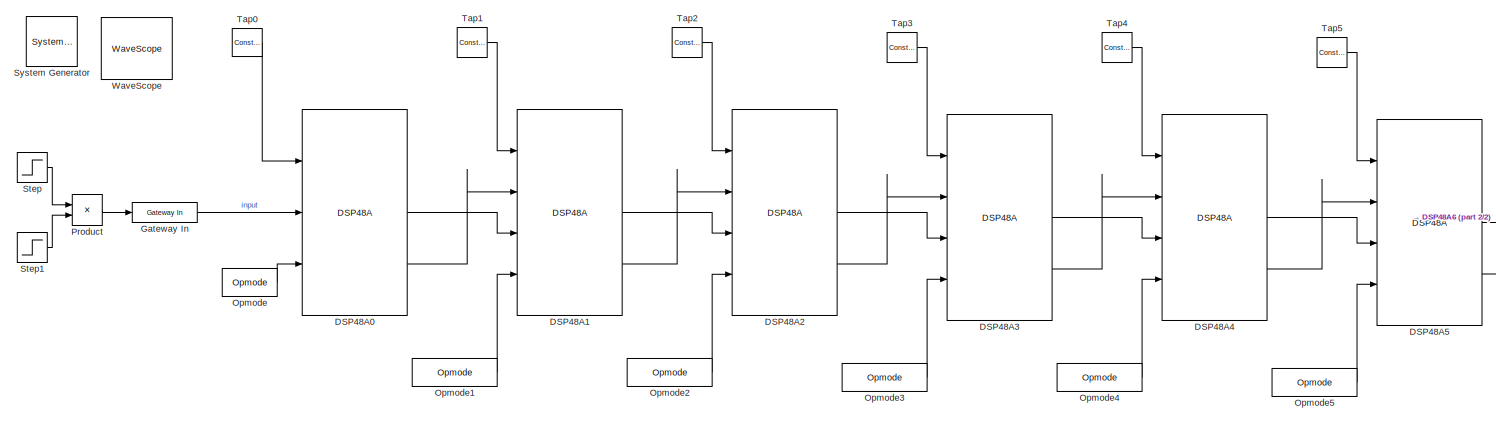
[diagram: root canvas - part 1/2, center side, full height]
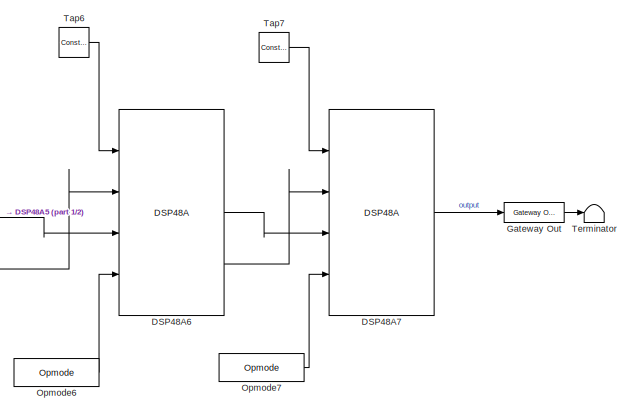
[diagram: root canvas - part 2/2, right side, full height]
MODEL asymmetric_8weight
KIND model
BLOCK [Reference]  System Generator  REF=xbsIndex_r4/ System Generator
  AttributesFormatString = System\\nGenerator
  FunctionWithSeparateData = off
  Ports = []
  RTWMemSecDataConstants = Inherit from model
  RTWMemSecDataInternal = Inherit from model
  RTWMemSecDataParameters = Inherit from model
  RTWMemSecFuncExecute = Inherit from model
  RTWMemSecFuncInitTerm = Inherit from model
  ShowPortLabels = FromPortIcon
  SourceBlock = xbsIndex_r4/ System Generator
  SourceType = Xilinx System Generator Block
  SystemSampleTime = -1
  Tag = genX
  UserData = DataTag0
  UserDataPersistent = on
  block_type = sysgen
  block_version = 9.2.01
  clock_wrapper = Clock Enables
  core_generation = According to Block Masks
  dbl_ovrd = According to Block Masks
  dcm_input_clock_period = 100
  deprecated_control = off
  directory = ./asymmetric_8_weight
  eval_field = 0
  has_advanced_control = 0
  incr_netlist = off
  infoedit = System Generator
  package = cs484
  part = xc3sd1800a
  run_coregen = off
  sg_icon_stat = 51,50,-1,-1,red,beige,0,07734
  sg_mask_display = fprintf('','COMMENT: begin icon graphics');\npatch([0 51 51 0 ],[0 0 50 50 ],[0.93 0.92 0.86]);\npatch([12 4 16 4 12 25 29 33 47 36 25 17 29 17 25 36 47 33 29 25 12 ],[5 13 25 37 45 45 41 45 45 34 45 37 25 13 5 16 5 5 9 5 5 ],[0.6 0.2 0.25]);\nplot([0 0 51 51 0 ],[0 50 50 0 0 ]);\nfprintf('','COMMENT: end icon graphics');\nfprintf('','COMMENT: begin icon text');\nfprintf('','COMMENT: end icon text...<+5ch>
  sggui_pos = -1,-1,-1,-1
  simulink_period = 1
  speed = -5
  synthesis_tool = XST
  sysclk_period = 3.2
  testbench = off
  trim_vbits = Everywhere in SubSystem
  xilinxfamily = spartan3adsp
BLOCK [Reference] DSP48A0  REF=xbsIndex_r4/DSP48A
  Ports = [3, 3]
  SourceBlock = xbsIndex_r4/DSP48A
  SourceType = Xilinx DSP48A Block
  block_type = dsp48a
  block_version = 9.2.01
  carryin_type = Direct from carry in port
  dbl_ovrd = off
  device = 3
  en_a = off
  en_all = off
  en_b = off
  en_c = off
  en_carry_in = off
  en_d = off
  en_mult = off
  en_opmode = off
  en_p = off
  has_advanced_control = 0
  pipeline_c = on
  pipeline_carryin = on
  pipeline_d = off
  pipeline_mult = on
  pipeline_opmode = on
  pipeline_p = on
  rst_a = off
  rst_all = off
  rst_b = off
  rst_c = off
  rst_carry_in = off
  rst_d = off
  rst_mult = off
  rst_opmode = off
  rst_p = off
  sg_icon_stat = 105,206,1,1,white,blue,0,2183f4c5,right
  sg_mask_display = fprintf('','COMMENT: begin icon graphics');\npatch([0 75 75 0 ],[0 0 136 136 ],[0.77 0.82 0.91]);\npatch([17 5 23 5 17 37 42 47 68 51 35 23 40 23 35 51 68 47 42 37 17 ],[39 51 69 87 99 99 94 99 99 82 98 86 69 52 40 56 39 39 44 39 39 ],[0.98 0.96 0.92]);\nplot([0 75 75 0 0 ],[0 0 136 136 0 ]);\nfprintf('','COMMENT: end icon graphics');\nfprintf('','COMMENT: begin icon text');\ncolor('black');port_l...<+288ch>
  sggui_pos = 261,101,442,483
  use_a0reg = on
  use_a1reg = off
  use_b0reg = on
  use_b1reg = on
  use_bcout = on
  use_carryin = off
  use_carryout = off
  use_creg = off
  use_d = off
  use_op = on
  use_pcin = off
  use_pcout = on
  use_synth_model = off
  xl_area = [0,0,0,0,0,0,0]
  xl_use_area = off
BLOCK [Reference] DSP48A1  REF=xbsIndex_r4/DSP48A
  Ports = [4, 3]
  SourceBlock = xbsIndex_r4/DSP48A
  SourceType = Xilinx DSP48A Block
  block_type = dsp48a
  block_version = 9.2.01
  carryin_type = Direct from carry in port
  dbl_ovrd = off
  device = 3
  en_a = off
  en_all = off
  en_b = off
  en_c = off
  en_carry_in = off
  en_d = off
  en_mult = off
  en_opmode = off
  en_p = off
  has_advanced_control = 0
  pipeline_c = on
  pipeline_carryin = on
  pipeline_d = off
  pipeline_mult = on
  pipeline_opmode = on
  pipeline_p = on
  rst_a = off
  rst_all = off
  rst_b = off
  rst_c = off
  rst_carry_in = off
  rst_d = off
  rst_mult = off
  rst_opmode = off
  rst_p = off
  sg_icon_stat = 105,206,1,1,white,blue,0,af99bc69,right
  sg_mask_display = fprintf('','COMMENT: begin icon graphics');\npatch([0 75 75 0 ],[0 0 136 136 ],[0.77 0.82 0.91]);\npatch([17 5 23 5 17 37 42 47 68 51 35 23 40 23 35 51 68 47 42 37 17 ],[39 51 69 87 99 99 94 99 99 82 98 86 69 52 40 56 39 39 44 39 39 ],[0.98 0.96 0.92]);\nplot([0 75 75 0 0 ],[0 0 136 136 0 ]);\nfprintf('','COMMENT: end icon graphics');\nfprintf('','COMMENT: begin icon text');\ncolor('black');port_l...<+334ch>  <repeated x6 — deduplicated; at blocks: DSP48A1, DSP48A2, DSP48A3, DSP48A4, DSP48A5, DSP48A6>
  sggui_pos = 20,20,442,483
  use_a0reg = on
  use_a1reg = off
  use_b0reg = on
  use_b1reg = on
  use_bcout = on
  use_carryin = off
  use_carryout = off
  use_creg = off
  use_d = off
  use_op = on
  use_pcin = on
  use_pcout = on
  use_synth_model = off
  xl_area = [0,0,0,0,0,0,0]
  xl_use_area = off
BLOCK [Reference] DSP48A2  REF=xbsIndex_r4/DSP48A
  Ports = [4, 3]
  SourceBlock = xbsIndex_r4/DSP48A
  SourceType = Xilinx DSP48A Block
  block_type = dsp48a
  block_version = 9.2.01
  carryin_type = Direct from carry in port
  dbl_ovrd = off
  device = 3
  en_a = off
  en_all = off
  en_b = off
  en_c = off
  en_carry_in = off
  en_d = off
  en_mult = off
  en_opmode = off
  en_p = off
  has_advanced_control = 0
  pipeline_c = on
  pipeline_carryin = on
  pipeline_d = off
  pipeline_mult = on
  pipeline_opmode = on
  pipeline_p = on
  rst_a = off
  rst_all = off
  rst_b = off
  rst_c = off
  rst_carry_in = off
  rst_d = off
  rst_mult = off
  rst_opmode = off
  rst_p = off
  sg_icon_stat = 105,206,1,1,white,blue,0,af99bc69,right
  sggui_pos = 20,20,442,483
  use_a0reg = on
  use_a1reg = off
  use_b0reg = on
  use_b1reg = on
  use_bcout = on
  use_carryin = off
  use_carryout = off
  use_creg = off
  use_d = off
  use_op = on
  use_pcin = on
  use_pcout = on
  use_synth_model = off
  xl_area = [0,0,0,0,0,0,0]
  xl_use_area = off
BLOCK [Reference] DSP48A3  REF=xbsIndex_r4/DSP48A
  Ports = [4, 3]
  SourceBlock = xbsIndex_r4/DSP48A
  SourceType = Xilinx DSP48A Block
  block_type = dsp48a
  block_version = 9.2.01
  carryin_type = Direct from carry in port
  dbl_ovrd = off
  device = 3
  en_a = off
  en_all = off
  en_b = off
  en_c = off
  en_carry_in = off
  en_d = off
  en_mult = off
  en_opmode = off
  en_p = off
  has_advanced_control = 0
  pipeline_c = on
  pipeline_carryin = on
  pipeline_d = off
  pipeline_mult = on
  pipeline_opmode = on
  pipeline_p = on
  rst_a = off
  rst_all = off
  rst_b = off
  rst_c = off
  rst_carry_in = off
  rst_d = off
  rst_mult = off
  rst_opmode = off
  rst_p = off
  sg_icon_stat = 105,206,1,1,white,blue,0,af99bc69,right
  sggui_pos = 20,20,442,483
  use_a0reg = on
  use_a1reg = off
  use_b0reg = on
  use_b1reg = on
  use_bcout = on
  use_carryin = off
  use_carryout = off
  use_creg = off
  use_d = off
  use_op = on
  use_pcin = on
  use_pcout = on
  use_synth_model = off
  xl_area = [0,0,0,0,0,0,0]
  xl_use_area = off
BLOCK [Reference] DSP48A4  REF=xbsIndex_r4/DSP48A
  Ports = [4, 3]
  SourceBlock = xbsIndex_r4/DSP48A
  SourceType = Xilinx DSP48A Block
  block_type = dsp48a
  block_version = 9.2.01
  carryin_type = Direct from carry in port
  dbl_ovrd = off
  device = 3
  en_a = off
  en_all = off
  en_b = off
  en_c = off
  en_carry_in = off
  en_d = off
  en_mult = off
  en_opmode = off
  en_p = off
  has_advanced_control = 0
  pipeline_c = on
  pipeline_carryin = on
  pipeline_d = off
  pipeline_mult = on
  pipeline_opmode = on
  pipeline_p = on
  rst_a = off
  rst_all = off
  rst_b = off
  rst_c = off
  rst_carry_in = off
  rst_d = off
  rst_mult = off
  rst_opmode = off
  rst_p = off
  sg_icon_stat = 105,206,1,1,white,blue,0,af99bc69,right
  sggui_pos = 20,20,442,483
  use_a0reg = on
  use_a1reg = off
  use_b0reg = on
  use_b1reg = on
  use_bcout = on
  use_carryin = off
  use_carryout = off
  use_creg = off
  use_d = off
  use_op = on
  use_pcin = on
  use_pcout = on
  use_synth_model = off
  xl_area = [0,0,0,0,0,0,0]
  xl_use_area = off
BLOCK [Reference] DSP48A5  REF=xbsIndex_r4/DSP48A
  Ports = [4, 3]
  SourceBlock = xbsIndex_r4/DSP48A
  SourceType = Xilinx DSP48A Block
  block_type = dsp48a
  block_version = 9.2.01
  carryin_type = Direct from carry in port
  dbl_ovrd = off
  device = 3
  en_a = off
  en_all = off
  en_b = off
  en_c = off
  en_carry_in = off
  en_d = off
  en_mult = off
  en_opmode = off
  en_p = off
  has_advanced_control = 0
  pipeline_c = on
  pipeline_carryin = on
  pipeline_d = off
  pipeline_mult = on
  pipeline_opmode = on
  pipeline_p = on
  rst_a = off
  rst_all = off
  rst_b = off
  rst_c = off
  rst_carry_in = off
  rst_d = off
  rst_mult = off
  rst_opmode = off
  rst_p = off
  sg_icon_stat = 105,206,1,1,white,blue,0,af99bc69,right
  sggui_pos = 20,20,442,483
  use_a0reg = on
  use_a1reg = off
  use_b0reg = on
  use_b1reg = on
  use_bcout = on
  use_carryin = off
  use_carryout = off
  use_creg = off
  use_d = off
  use_op = on
  use_pcin = on
  use_pcout = on
  use_synth_model = off
  xl_area = [0,0,0,0,0,0,0]
  xl_use_area = off
BLOCK [Reference] DSP48A6  REF=xbsIndex_r4/DSP48A
  Ports = [4, 3]
  SourceBlock = xbsIndex_r4/DSP48A
  SourceType = Xilinx DSP48A Block
  block_type = dsp48a
  block_version = 9.2.01
  carryin_type = Direct from carry in port
  dbl_ovrd = off
  device = 3
  en_a = off
  en_all = off
  en_b = off
  en_c = off
  en_carry_in = off
  en_d = off
  en_mult = off
  en_opmode = off
  en_p = off
  has_advanced_control = 0
  pipeline_c = on
  pipeline_carryin = on
  pipeline_d = off
  pipeline_mult = on
  pipeline_opmode = on
  pipeline_p = on
  rst_a = off
  rst_all = off
  rst_b = off
  rst_c = off
  rst_carry_in = off
  rst_d = off
  rst_mult = off
  rst_opmode = off
  rst_p = off
  sg_icon_stat = 105,206,1,1,white,blue,0,af99bc69,right
  sggui_pos = 20,20,442,483
  use_a0reg = on
  use_a1reg = off
  use_b0reg = on
  use_b1reg = on
  use_bcout = on
  use_carryin = off
  use_carryout = off
  use_creg = off
  use_d = off
  use_op = on
  use_pcin = on
  use_pcout = on
  use_synth_model = off
  xl_area = [0,0,0,0,0,0,0]
  xl_use_area = off
BLOCK [Reference] DSP48A7  REF=xbsIndex_r4/DSP48A
  Ports = [4, 1]
  SourceBlock = xbsIndex_r4/DSP48A
  SourceType = Xilinx DSP48A Block
  block_type = dsp48a
  block_version = 9.2.01
  carryin_type = Direct from carry in port
  dbl_ovrd = off
  device = 3
  en_a = off
  en_all = off
  en_b = off
  en_c = off
  en_carry_in = off
  en_d = off
  en_mult = off
  en_opmode = off
  en_p = off
  has_advanced_control = 0
  pipeline_c = on
  pipeline_carryin = on
  pipeline_d = off
  pipeline_mult = on
  pipeline_opmode = on
  pipeline_p = on
  rst_a = off
  rst_all = off
  rst_b = off
  rst_c = off
  rst_carry_in = off
  rst_d = off
  rst_mult = off
  rst_opmode = off
  rst_p = off
  sg_icon_stat = 105,206,1,1,white,blue,0,d1acf6e8,right
  sg_mask_display = fprintf('','COMMENT: begin icon graphics');\npatch([0 75 75 0 ],[0 0 136 136 ],[0.77 0.82 0.91]);\npatch([17 5 23 5 17 37 42 47 68 51 35 23 40 23 35 51 68 47 42 37 17 ],[39 51 69 87 99 99 94 99 99 82 98 86 69 52 40 56 39 39 44 39 39 ],[0.98 0.96 0.92]);\nplot([0 75 75 0 0 ],[0 0 136 136 0 ]);\nfprintf('','COMMENT: end icon graphics');\nfprintf('','COMMENT: begin icon text');\ncolor('black');port_l...<+238ch>
  sggui_pos = 20,20,442,483
  use_a0reg = on
  use_a1reg = off
  use_b0reg = on
  use_b1reg = on
  use_bcout = off
  use_carryin = off
  use_carryout = off
  use_creg = off
  use_d = off
  use_op = on
  use_pcin = on
  use_pcout = off
  use_synth_model = off
  xl_area = [0,0,0,0,0,0,0]
  xl_use_area = off
BLOCK [Reference] Gateway In  REF=xbsIndex_r4/Gateway In
  LOCs = {}
  Ports = [1, 1]
  SourceBlock = xbsIndex_r4/Gateway In
  SourceType = Xilinx Gateway In Block
  arith_type = Signed  (2's comp)
  bin_pt = 0
  block_type = gatewayin
  block_version = 9.2.01
  dbl_ovrd = off
  has_advanced_control = 0
  infoedit = Gateway in block.  Converts inputs of type Simulink integer, double and fixed point to  Xilinx fixed point type.<P><P>Hardware notes:  In hardware these blocks become top level input ports.
  locs_specified = off
  n_bits = 18
  overflow = Saturate
  period = 1
  quantization = Round  (unbiased: +/- Inf)
  sg_icon_stat = 65,20,1,1,white,yellow,0,bc55d28f,right
  sg_mask_display = fprintf('','COMMENT: begin icon graphics');\npatch([0 65 65 0 ],[0 0 20 20 ],[0.95 0.93 0.65]);\npatch([27 24 29 24 27 32 33 34 40 36 32 29 34 29 32 36 40 34 33 32 27 ],[2 5 10 15 18 18 17 18 18 14 18 15 10 5 2 6 2 2 3 2 2 ],[0.98 0.96 0.92]);\nplot([0 65 65 0 0 ],[0 0 20 20 0 ]);\nfprintf('','COMMENT: end icon graphics');\nfprintf('','COMMENT: begin icon text');\ncolor('black');port_label('input'...<+131ch>
  sggui_pos = 20,20,348,406
  timing_constraint = None
  xl_area = [0,0,0,0,0,0,0]
  xl_use_area = off
BLOCK [Reference] Gateway Out  REF=xbsIndex_r4/Gateway Out
  LOCs = {}
  Ports = [1, 1]
  SourceBlock = xbsIndex_r4/Gateway Out
  SourceType = Xilinx Gateway Out Block
  block_type = gatewayout
  block_version = 9.2.01
  has_advanced_control = 0
  hdl_port = on
  infoedit = Gateway out block.  Converts Xilinx fixed point inputs into ouputs of type Simulink integer, double, or fixed point.<P><P>Hardware notes:  In hardware these blocks become top level output ports or are discarded, depending on how they are configured.
  locs_specified = off
  sg_icon_stat = 60,20,1,1,white,yellow,0,38220381,right
  sg_mask_display = fprintf('','COMMENT: begin icon graphics');\npatch([0 60 60 0 ],[0 0 20 20 ],[0.95 0.93 0.65]);\npatch([24 21 26 21 24 29 30 31 37 33 29 26 31 26 29 33 37 31 30 29 24 ],[2 5 10 15 18 18 17 18 18 14 18 15 10 5 2 6 2 2 3 2 2 ],[0.98 0.96 0.92]);\nplot([0 60 60 0 0 ],[0 0 20 20 0 ]);\nfprintf('','COMMENT: end icon graphics');\nfprintf('','COMMENT: begin icon text');\ncolor('black');port_label('input'...<+132ch>
  sggui_pos = -1,-1,-1,-1
  timing_constraint = None
  xl_area = [0,0,0,0,0,0,0]
  xl_use_area = off
BLOCK [Reference] Opmode  REF=xbsIndex_r4/Opmode
  Ports = [0, 1]
  SourceBlock = xbsIndex_r4/Opmode
  SourceType = Xilinx Instruction Block Block
  block_type = opmode
  block_version = 9.2.01
  carry = 0
  dbl_ovrd = off
  device = DSP48A
  equ = P=(A*B)
  has_advanced_control = 0
  logicinstr = X + Z
  operand = +
  operation = A * B
  sg_icon_stat = 55,28,1,1,white,blue,0,0eb0987d,right
  sg_list_contents = {'table'=>{'carry'=>'popup(0|1|CIN)','operation'=>'popup(C + A*B|PCIN + A*B|P + A*B|A * B|C + D:A:B|C - D:A:B|C|Custom)','userSelections'=>{'carry'=>'0','operation'=>'A * B','z_mux'=>'C'},'z_mux'=>'popup(0|PCIN|P|C)'}}
  sg_mask_display = fprintf('','COMMENT: begin icon graphics');\npatch([0 55 55 0 ],[0 0 26 26 ],[0.77 0.82 0.91]);\npatch([20 16 22 16 20 27 29 31 38 32 26 22 28 22 26 32 38 31 29 27 20 ],[3 7 13 19 23 23 21 23 23 17 23 19 13 7 3 9 3 3 5 3 3 ],[0.98 0.96 0.92]);\nplot([0 55 55 0 0 ],[0 0 26 26 0 ]);\nfprintf('','COMMENT: end icon graphics');\nfprintf('','COMMENT: begin icon text');\ncolor('black');port_label('output...<+56ch>
  sggui_pos = 617,177,336,450
  x_mux = A*(D+B)
  xy_mux = P
  z_mux = C
BLOCK [Reference] Opmode1  REF=xbsIndex_r4/Opmode
  Ports = [0, 1]
  SourceBlock = xbsIndex_r4/Opmode
  SourceType = Xilinx Instruction Block Block
  block_type = opmode
  block_version = 9.2.01
  carry = 0
  dbl_ovrd = off
  device = DSP48A
  equ = P=PCIN+(A*B)
  has_advanced_control = 0
  logicinstr = X + Z
  operand = +
  operation = PCIN + A*B
  sg_icon_stat = 85,28,1,1,white,blue,0,781f3f74,right
  sg_list_contents = {'table'=>{'carry'=>'popup(0|1|CIN)','operation'=>'popup(C + A*B|PCIN + A*B|P + A*B|A * B|C + D:A:B|C - D:A:B|C|Custom)','userSelections'=>{'carry'=>'0','operation'=>'PCIN + A*B','z_mux'=>'P'},'z_mux'=>'popup(0|PCIN|P|C)'}}  <repeated x7 — deduplicated; at blocks: Opmode1, Opmode2, Opmode3, Opmode4, Opmode5, Opmode6, Opmode7>
  sg_mask_display = fprintf('','COMMENT: begin icon graphics');\npatch([0 55 55 0 ],[0 0 26 26 ],[0.77 0.82 0.91]);\npatch([20 16 22 16 20 27 29 31 38 32 26 22 28 22 26 32 38 31 29 27 20 ],[3 7 13 19 23 23 21 23 23 17 23 19 13 7 3 9 3 3 5 3 3 ],[0.98 0.96 0.92]);\nplot([0 55 55 0 0 ],[0 0 26 26 0 ]);\nfprintf('','COMMENT: end icon graphics');\nfprintf('','COMMENT: begin icon text');\ncolor('black');port_label('output...<+61ch>  <repeated x7 — deduplicated; at blocks: Opmode1, Opmode2, Opmode3, Opmode4, Opmode5, Opmode6, Opmode7>
  sggui_pos = 20,20,336,450
  x_mux = A*(D+B)
  xy_mux = P
  z_mux = P
BLOCK [Reference] Opmode2  REF=xbsIndex_r4/Opmode
  Ports = [0, 1]
  SourceBlock = xbsIndex_r4/Opmode
  SourceType = Xilinx Instruction Block Block
  block_type = opmode
  block_version = 9.2.01
  carry = 0
  dbl_ovrd = off
  device = DSP48A
  equ = P=PCIN+(A*B)
  has_advanced_control = 0
  logicinstr = X + Z
  operand = +
  operation = PCIN + A*B
  sg_icon_stat = 85,28,1,1,white,blue,0,781f3f74,right
  sggui_pos = 20,20,336,450
  x_mux = A*(D+B)
  xy_mux = P
  z_mux = P
BLOCK [Reference] Opmode3  REF=xbsIndex_r4/Opmode
  Ports = [0, 1]
  SourceBlock = xbsIndex_r4/Opmode
  SourceType = Xilinx Instruction Block Block
  block_type = opmode
  block_version = 9.2.01
  carry = 0
  dbl_ovrd = off
  device = DSP48A
  equ = P=PCIN+(A*B)
  has_advanced_control = 0
  logicinstr = X + Z
  operand = +
  operation = PCIN + A*B
  sg_icon_stat = 85,28,1,1,white,blue,0,781f3f74,right
  sggui_pos = 20,20,336,450
  x_mux = A*(D+B)
  xy_mux = P
  z_mux = P
BLOCK [Reference] Opmode4  REF=xbsIndex_r4/Opmode
  Ports = [0, 1]
  SourceBlock = xbsIndex_r4/Opmode
  SourceType = Xilinx Instruction Block Block
  block_type = opmode
  block_version = 9.2.01
  carry = 0
  dbl_ovrd = off
  device = DSP48A
  equ = P=PCIN+(A*B)
  has_advanced_control = 0
  logicinstr = X + Z
  operand = +
  operation = PCIN + A*B
  sg_icon_stat = 85,28,1,1,white,blue,0,781f3f74,right
  sggui_pos = 20,20,336,450
  x_mux = A*(D+B)
  xy_mux = P
  z_mux = P
BLOCK [Reference] Opmode5  REF=xbsIndex_r4/Opmode
  Ports = [0, 1]
  SourceBlock = xbsIndex_r4/Opmode
  SourceType = Xilinx Instruction Block Block
  block_type = opmode
  block_version = 9.2.01
  carry = 0
  dbl_ovrd = off
  device = DSP48A
  equ = P=PCIN+(A*B)
  has_advanced_control = 0
  logicinstr = X + Z
  operand = +
  operation = PCIN + A*B
  sg_icon_stat = 85,28,1,1,white,blue,0,781f3f74,right
  sggui_pos = 20,20,336,450
  x_mux = A*(D+B)
  xy_mux = P
  z_mux = P
BLOCK [Reference] Opmode6  REF=xbsIndex_r4/Opmode
  Ports = [0, 1]
  SourceBlock = xbsIndex_r4/Opmode
  SourceType = Xilinx Instruction Block Block
  block_type = opmode
  block_version = 9.2.01
  carry = 0
  dbl_ovrd = off
  device = DSP48A
  equ = P=PCIN+(A*B)
  has_advanced_control = 0
  logicinstr = X + Z
  operand = +
  operation = PCIN + A*B
  sg_icon_stat = 85,28,1,1,white,blue,0,781f3f74,right
  sggui_pos = 20,20,336,450
  x_mux = A*(D+B)
  xy_mux = P
  z_mux = P
BLOCK [Reference] Opmode7  REF=xbsIndex_r4/Opmode
  Ports = [0, 1]
  SourceBlock = xbsIndex_r4/Opmode
  SourceType = Xilinx Instruction Block Block
  block_type = opmode
  block_version = 9.2.01
  carry = 0
  dbl_ovrd = off
  device = DSP48A
  equ = P=PCIN+(A*B)
  has_advanced_control = 0
  logicinstr = X + Z
  operand = +
  operation = PCIN + A*B
  sg_icon_stat = 85,28,1,1,white,blue,0,781f3f74,right
  sggui_pos = 20,20,336,450
  x_mux = A*(D+B)
  xy_mux = P
  z_mux = P
BLOCK [Product] Product
  CollapseMode = All dimensions
  InputSameDT = off
  OutDataTypeMode = Inherit via internal rule
  Ports = [2, 1]
  SaturateOnIntegerOverflow = off
BLOCK [Step] Step
  SampleTime = 1
  Time = 3
BLOCK [Step] Step1
  After = 0
  Before = 1
  SampleTime = 1
  Time = 4
BLOCK [Reference] Tap0  REF=xbsIndex_r4/Constant
  Ports = [0, 1]
  SourceBlock = xbsIndex_r4/Constant
  SourceType = Xilinx Constant Block Block
  arith_type = Signed (2's comp)
  bin_pt = 0
  block_type = constant
  block_version = 9.2.01
  carry = CIN
  const = 14
  dbl_ovrd = off
  dsp48_infoedit = The use of this block for DSP48 instructions is deprecated.  Please use the Opmode block.
  equ = P=C
  explicit_period = off
  has_advanced_control = 0
  inp1 = P
  inp2 = PCIN>>17
  n_bits = 18
  opr = +
  opselect = C
  period = 1
  sg_icon_stat = 30,28,1,1,white,blue,0,4fcd9418,right
  sg_mask_display = fprintf('','COMMENT: begin icon graphics');\npatch([0 55 55 0 ],[0 0 26 26 ],[0.77 0.82 0.91]);\npatch([20 16 22 16 20 27 29 31 38 32 26 22 28 22 26 32 38 31 29 27 20 ],[3 7 13 19 23 23 21 23 23 17 23 19 13 7 3 9 3 3 5 3 3 ],[0.98 0.96 0.92]);\nplot([0 55 55 0 0 ],[0 0 26 26 0 ]);\nfprintf('','COMMENT: end icon graphics');\nfprintf('','COMMENT: begin icon text');\ncolor('black');port_label('output...<+51ch>
  sggui_pos = 20,20,400,346
BLOCK [Reference] Tap1  REF=xbsIndex_r4/Constant
  Ports = [0, 1]
  SourceBlock = xbsIndex_r4/Constant
  SourceType = Xilinx Constant Block Block
  arith_type = Signed (2's comp)
  bin_pt = 0
  block_type = constant
  block_version = 9.2.01
  carry = CIN
  const = 64
  dbl_ovrd = off
  dsp48_infoedit = The use of this block for DSP48 instructions is deprecated.  Please use the Opmode block.
  equ = P=C
  explicit_period = off
  has_advanced_control = 0
  inp1 = P
  inp2 = PCIN>>17
  n_bits = 18
  opr = +
  opselect = C
  period = 1
  sg_icon_stat = 30,30,1,1,white,blue,0,86ec2f60,right
  sg_mask_display = fprintf('','COMMENT: begin icon graphics');\npatch([0 55 55 0 ],[0 0 26 26 ],[0.77 0.82 0.91]);\npatch([20 16 22 16 20 27 29 31 38 32 26 22 28 22 26 32 38 31 29 27 20 ],[3 7 13 19 23 23 21 23 23 17 23 19 13 7 3 9 3 3 5 3 3 ],[0.98 0.96 0.92]);\nplot([0 55 55 0 0 ],[0 0 26 26 0 ]);\nfprintf('','COMMENT: end icon graphics');\nfprintf('','COMMENT: begin icon text');\ncolor('black');port_label('output...<+51ch>
  sggui_pos = 20,20,400,346
BLOCK [Reference] Tap2  REF=xbsIndex_r4/Constant
  Ports = [0, 1]
  SourceBlock = xbsIndex_r4/Constant
  SourceType = Xilinx Constant Block Block
  arith_type = Signed (2's comp)
  bin_pt = 0
  block_type = constant
  block_version = 9.2.01
  carry = CIN
  const = -30
  dbl_ovrd = off
  dsp48_infoedit = The use of this block for DSP48 instructions is deprecated.  Please use the Opmode block.
  equ = P=C
  explicit_period = off
  has_advanced_control = 0
  inp1 = P
  inp2 = PCIN>>17
  n_bits = 18
  opr = +
  opselect = C
  period = 1
  sg_icon_stat = 30,30,1,1,white,blue,0,8d37440e,right
  sg_mask_display = fprintf('','COMMENT: begin icon graphics');\npatch([0 55 55 0 ],[0 0 26 26 ],[0.77 0.82 0.91]);\npatch([20 16 22 16 20 27 29 31 38 32 26 22 28 22 26 32 38 31 29 27 20 ],[3 7 13 19 23 23 21 23 23 17 23 19 13 7 3 9 3 3 5 3 3 ],[0.98 0.96 0.92]);\nplot([0 55 55 0 0 ],[0 0 26 26 0 ]);\nfprintf('','COMMENT: end icon graphics');\nfprintf('','COMMENT: begin icon text');\ncolor('black');port_label('output...<+52ch>  <repeated x5 — deduplicated; at blocks: Tap2, Tap3, Tap4, Tap6, Tap7>
  sggui_pos = 20,20,400,346
BLOCK [Reference] Tap3  REF=xbsIndex_r4/Constant
  Ports = [0, 1]
  SourceBlock = xbsIndex_r4/Constant
  SourceType = Xilinx Constant Block Block
  arith_type = Signed (2's comp)
  bin_pt = 0
  block_type = constant
  block_version = 9.2.01
  carry = CIN
  const = 153
  dbl_ovrd = off
  dsp48_infoedit = The use of this block for DSP48 instructions is deprecated.  Please use the Opmode block.
  equ = P=C
  explicit_period = off
  has_advanced_control = 0
  inp1 = P
  inp2 = PCIN>>17
  n_bits = 18
  opr = +
  opselect = C
  period = 1
  sg_icon_stat = 30,30,1,1,white,blue,0,6216d7cb,right
  sggui_pos = 20,20,400,346
BLOCK [Reference] Tap4  REF=xbsIndex_r4/Constant
  Ports = [0, 1]
  SourceBlock = xbsIndex_r4/Constant
  SourceType = Xilinx Constant Block Block
  arith_type = Signed (2's comp)
  bin_pt = 0
  block_type = constant
  block_version = 9.2.01
  carry = CIN
  const = -99
  dbl_ovrd = off
  dsp48_infoedit = The use of this block for DSP48 instructions is deprecated.  Please use the Opmode block.
  equ = P=C
  explicit_period = off
  has_advanced_control = 0
  inp1 = P
  inp2 = PCIN>>17
  n_bits = 18
  opr = +
  opselect = C
  period = 1
  sg_icon_stat = 30,30,1,1,white,blue,0,19594a31,right
  sggui_pos = 20,20,400,346
BLOCK [Reference] Tap5  REF=xbsIndex_r4/Constant
  Ports = [0, 1]
  SourceBlock = xbsIndex_r4/Constant
  SourceType = Xilinx Constant Block Block
  arith_type = Signed (2's comp)
  bin_pt = 0
  block_type = constant
  block_version = 9.2.01
  carry = CIN
  const = 1
  dbl_ovrd = off
  dsp48_infoedit = The use of this block for DSP48 instructions is deprecated.  Please use the Opmode block.
  equ = P=C
  explicit_period = off
  has_advanced_control = 0
  inp1 = P
  inp2 = PCIN>>17
  n_bits = 18
  opr = +
  opselect = C
  period = 1
  sg_icon_stat = 30,30,1,1,white,blue,0,06094819,right
  sg_mask_display = fprintf('','COMMENT: begin icon graphics');\npatch([0 55 55 0 ],[0 0 26 26 ],[0.77 0.82 0.91]);\npatch([20 16 22 16 20 27 29 31 38 32 26 22 28 22 26 32 38 31 29 27 20 ],[3 7 13 19 23 23 21 23 23 17 23 19 13 7 3 9 3 3 5 3 3 ],[0.98 0.96 0.92]);\nplot([0 55 55 0 0 ],[0 0 26 26 0 ]);\nfprintf('','COMMENT: end icon graphics');\nfprintf('','COMMENT: begin icon text');\ncolor('black');port_label('output...<+50ch>
  sggui_pos = 20,20,400,346
BLOCK [Reference] Tap6  REF=xbsIndex_r4/Constant
  Ports = [0, 1]
  SourceBlock = xbsIndex_r4/Constant
  SourceType = Xilinx Constant Block Block
  arith_type = Signed (2's comp)
  bin_pt = 0
  block_type = constant
  block_version = 9.2.01
  carry = CIN
  const = -17
  dbl_ovrd = off
  dsp48_infoedit = The use of this block for DSP48 instructions is deprecated.  Please use the Opmode block.
  equ = P=C
  explicit_period = off
  has_advanced_control = 0
  inp1 = P
  inp2 = PCIN>>17
  n_bits = 18
  opr = +
  opselect = C
  period = 1
  sg_icon_stat = 30,30,1,1,white,blue,0,3cedff74,right
  sggui_pos = 20,20,400,346
BLOCK [Reference] Tap7  REF=xbsIndex_r4/Constant
  Ports = [0, 1]
  SourceBlock = xbsIndex_r4/Constant
  SourceType = Xilinx Constant Block Block
  arith_type = Signed (2's comp)
  bin_pt = 0
  block_type = constant
  block_version = 9.2.01
  carry = CIN
  const = -25
  dbl_ovrd = off
  dsp48_infoedit = The use of this block for DSP48 instructions is deprecated.  Please use the Opmode block.
  equ = P=C
  explicit_period = off
  has_advanced_control = 0
  inp1 = P
  inp2 = PCIN>>17
  n_bits = 18
  opr = +
  opselect = C
  period = 1
  sg_icon_stat = 30,30,1,1,white,blue,0,61596bc5,right
  sggui_pos = 20,20,400,346
BLOCK [Terminator] Terminator
BLOCK [Reference] WaveScope  REF=xbsIndex_r4/WaveScope
  Ports = []
  SourceBlock = xbsIndex_r4/WaveScope
  SourceType = WaveScope Block
  UserData = DataTag1
  UserDataPersistent = on
  block_type = wavescope
  block_version = 9.2.01
  has_advanced_control = 0
  infoedit = WaveScope
  sg_icon_stat = 0,0,-1,-1,white,blue,0,07734
  sggui_pos = -1,-1,-1,-1
LINE DSP48A0:2 -> DSP48A1:3
LINE DSP48A0:3 -> DSP48A1:2
LINE DSP48A1:2 -> DSP48A2:3
LINE DSP48A1:3 -> DSP48A2:2
LINE DSP48A2:2 -> DSP48A3:3
LINE DSP48A2:3 -> DSP48A3:2
LINE DSP48A3:2 -> DSP48A4:3
LINE DSP48A3:3 -> DSP48A4:2
LINE DSP48A4:2 -> DSP48A5:3
LINE DSP48A4:3 -> DSP48A5:2
LINE DSP48A5:2 -> DSP48A6:3
LINE DSP48A5:3 -> DSP48A6:2
LINE DSP48A6:2 -> DSP48A7:3
LINE DSP48A6:3 -> DSP48A7:2
LINE DSP48A7:1 -> Gateway Out:1
LINE Gateway In:1 -> DSP48A0:2
LINE Gateway Out:1 -> Terminator:1
LINE Opmode1:1 -> DSP48A1:4
LINE Opmode2:1 -> DSP48A2:4
LINE Opmode3:1 -> DSP48A3:4
LINE Opmode4:1 -> DSP48A4:4
LINE Opmode5:1 -> DSP48A5:4
LINE Opmode6:1 -> DSP48A6:4
LINE Opmode7:1 -> DSP48A7:4
LINE Opmode:1 -> DSP48A0:3
LINE Product:1 -> Gateway In:1
LINE Step1:1 -> Product:2
LINE Step:1 -> Product:1
LINE Tap0:1 -> DSP48A0:1
LINE Tap1:1 -> DSP48A1:1
LINE Tap2:1 -> DSP48A2:1
LINE Tap3:1 -> DSP48A3:1
LINE Tap4:1 -> DSP48A4:1
LINE Tap5:1 -> DSP48A5:1
LINE Tap6:1 -> DSP48A6:1
LINE Tap7:1 -> DSP48A7:1
